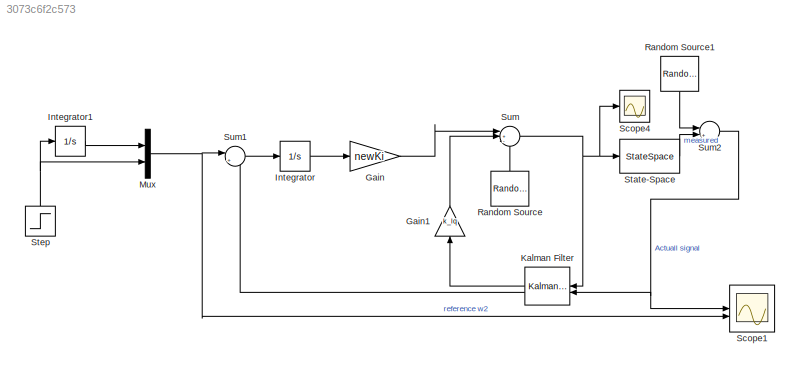
MODEL slx_3073c6f2c573
KIND model
CONFIG AbsTol = auto
CONFIG EnableMultiTasking = off
CONFIG FixedStep = auto
CONFIG MaxStep = auto
CONFIG MinStep = auto
CONFIG RelTol = 1e-3
CONFIG SampleTimeConstraint = Unconstrained
CONFIG SolverName = VariableStepAuto
CONFIG StartTime = 0.0
CONFIG StopTime = 25
BLOCK [Gain] Gain
  Gain = newKi
  Multiplication = Matrix(K*u)
BLOCK [Gain] Gain1
  Gain = k_lq
  Multiplication = Matrix(K*u)
  NameLocation = right
BLOCK [Integrator] Integrator
BLOCK [Integrator] Integrator1
BLOCK [Reference] Kalman Filter  REF=ctrlSharedLib/Kalman Filter
  LibrarySourceBlock = cstblocks/State Estimation/Kalman Filter
  NameLocation = top
  SourceBlock = ctrlSharedLib/Kalman Filter
  SourceType = ctrlKalmanFilter
BLOCK [Mux] Mux
  DisplayOption = bar
  Inputs = 2
BLOCK [Reference] Random Source  REF=dspsrcs4/Random
Source
  NameLocation = right
  SourceBlock = dspsrcs4/Random\nSource
  SourceType = Random Source
  UserDataPersistent = on
BLOCK [Reference] Random Source1  REF=dspsrcs4/Random
Source
  NameLocation = left
  SourceBlock = dspsrcs4/Random\nSource
  SourceType = Random Source
  UserDataPersistent = on
BLOCK [Scope] Scope1
  Floating = off
  NumInputPorts = 2
  ScopeSpecificationString = Simulink.scopes.TimeScopeBlockCfg('CurrentConfiguration', extmgr.ConfigurationSet(extmgr.Configuration('Core','General UI',true),extmgr.Configuration('Core','Source UI',true),extmgr.Configuration('Sources','WiredSimulink',true,'DataLoggingVariableName','ScopeData1'),extmgr.Configuration('Visuals','Time Domain',true,'SerializedDisplays',{struct('MinYLimReal','-304.16051','MaxYLimReal','2711.57339',...<+1657ch>
BLOCK [Scope] Scope4
  Floating = off
  NumInputPorts = 1
  ScopeSpecificationString = Simulink.scopes.TimeScopeBlockCfg('CurrentConfiguration', extmgr.ConfigurationSet(extmgr.Configuration('Core','General UI',true),extmgr.Configuration('Core','Source UI',true),extmgr.Configuration('Sources','WiredSimulink',true,'DataLoggingVariableName','ScopeData4'),extmgr.Configuration('Visuals','Time Domain',true,'SerializedDisplays',{struct('MinYLimReal','-24.45304','MaxYLimReal','123.13487','Y...<+1463ch>
BLOCK [StateSpace] State-Space
  A = A
  B = B
  C = C1
  D = D1
  InitialCondition = 0
BLOCK [Step] Step
  After = 100
  Before = 10
  NameLocation = right
  SampleTime = 0
BLOCK [Sum] Sum
  Inputs = |+-+
BLOCK [Sum] Sum1
  Inputs = |+-
BLOCK [Sum] Sum2
  Inputs = |++
LINE Gain1:1 -> Sum:2
LINE Gain:1 -> Sum:1
LINE Integrator1:1 -> Mux:1
LINE Integrator:1 -> Gain:1
LINE Kalman Filter:1 -> Gain1:1
LINE Kalman Filter:2 -> Sum1:2
NET Mux:1 -> Scope1:2, Sum1:1
LINE Random Source1:1 -> Sum2:1
LINE Random Source:1 -> Sum:3
LINE State-Space:1 -> Sum2:2
NET Step:1 -> Integrator1:1, Mux:2
LINE Sum1:1 -> Integrator:1
NET Sum2:1 -> Kalman Filter:2, Scope1:1
NET Sum:1 -> Kalman Filter:1, Scope4:1, State-Space:1
note: NET lines group one-source signal fan-out (src -> all destinations, sorted); 1:1 wires keep LINE
